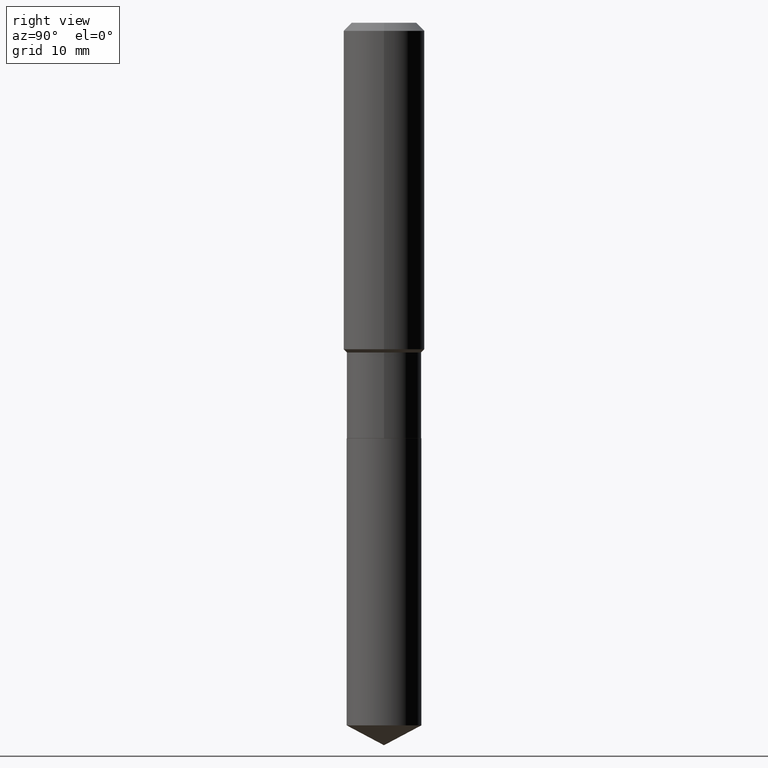
[diagram: clean part render]
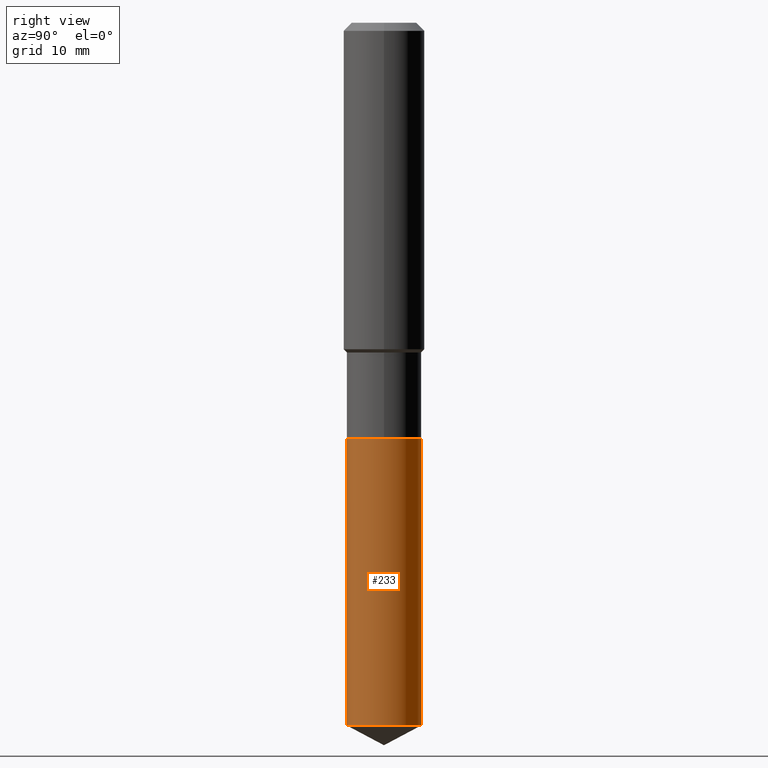
[diagram: same view with one face highlighted and labeled with its STEP entity id]
A machine part, right view. The second image highlights one B-rep face of the part: STEP entity #233.
In plain terms, the highlighted cylindrical surface (partial cylindrical patch) has radius 4.5999 mm, axis along (-0, 0, 1).
Its self-contained STEP definition (entity closure, byte-faithful):
#26 = DIRECTION ( 'NONE',  ( -6.982962677686266711E-15, -1.000000000000000000, 3.016949744521549444E-15 ) ) ;
#48 = ORIENTED_EDGE ( 'NONE', *, *, #390, .F. ) ;
#74 = AXIS2_PLACEMENT_3D ( 'NONE', #489, #156, #163 ) ;
#88 = CIRCLE ( 'NONE', #373, 0.1811000000000000110 ) ;
#99 = DIRECTION ( 'NONE',  ( -2.445569101703977201E-29, 3.491337709951699296E-15, 1.000000000000000000 ) ) ;
#102 = CARTESIAN_POINT ( 'NONE',  ( 4.929331472627379200E-29, -7.037778934706127955E-15, -2.015699999999999825 ) ) ;
#104 = CARTESIAN_POINT ( 'NONE',  ( 1.286792894461590621E-15, 0.1810999999999929888, -2.015700000000000269 ) ) ;
#156 = DIRECTION ( 'NONE',  ( -2.445569101703977201E-29, 3.491337709951699296E-15, 1.000000000000000000 ) ) ;
#163 = DIRECTION ( 'NONE',  ( -6.982962677686266711E-15, -1.000000000000000000, 3.016949744521549444E-15 ) ) ;
#164 = ORIENTED_EDGE ( 'NONE', *, *, #297, .T. ) ;
#180 = VERTEX_POINT ( 'NONE', #379 ) ;
#193 = CIRCLE ( 'NONE', #261, 0.1811000000000000110 ) ;
#195 = FACE_OUTER_BOUND ( 'NONE', #467, .T. ) ;
#198 = CARTESIAN_POINT ( 'NONE',  ( 8.333337256122308322E-29, -1.189739780563839754E-14, -3.407607421926106994 ) ) ;
#233 = ADVANCED_FACE ( 'NONE', ( #195 ), #344, .T. ) ;
#251 = LINE ( 'NONE', #104, #434 ) ;
#260 = DIRECTION ( 'NONE',  ( -2.445569101703977201E-29, 3.491337709951699296E-15, 1.000000000000000000 ) ) ;
#261 = AXIS2_PLACEMENT_3D ( 'NONE', #198, #347, #454 ) ;
#297 = EDGE_CURVE ( 'NONE', #357, #398, #193, .T. ) ;
#307 = VECTOR ( 'NONE', #439, 39.37007874015748143 ) ;
#325 = CARTESIAN_POINT ( 'NONE',  ( -1.264614540928933635E-15, -0.1811000000000070609, -2.015699999999999381 ) ) ;
#330 = CARTESIAN_POINT ( 'NONE',  ( 1.286792894461624739E-15, 0.1810999999999929888, -2.015700000000000269 ) ) ;
#344 = CYLINDRICAL_SURFACE ( 'NONE', #74, 0.1811000000000000110 ) ;
#347 = DIRECTION ( 'NONE',  ( -2.445569101703977201E-29, 3.491337709951699296E-15, 1.000000000000000000 ) ) ;
#357 = VERTEX_POINT ( 'NONE', #458 ) ;
#360 = CARTESIAN_POINT ( 'NONE',  ( 1.286792894461624542E-15, 0.1810999999999881316, -3.407607421926107438 ) ) ;
#368 = LINE ( 'NONE', #325, #307 ) ;
#373 = AXIS2_PLACEMENT_3D ( 'NONE', #102, #99, #26 ) ;
#376 = EDGE_CURVE ( 'NONE', #180, #389, #88, .T. ) ;
#379 = CARTESIAN_POINT ( 'NONE',  ( -1.264614540928933635E-15, -0.1811000000000070609, -2.015699999999999381 ) ) ;
#389 = VERTEX_POINT ( 'NONE', #330 ) ;
#390 = EDGE_CURVE ( 'NONE', #357, #180, #368, .T. ) ;
#398 = VERTEX_POINT ( 'NONE', #360 ) ;
#428 = ORIENTED_EDGE ( 'NONE', *, *, #436, .T. ) ;
#434 = VECTOR ( 'NONE', #260, 39.37007874015748143 ) ;
#436 = EDGE_CURVE ( 'NONE', #398, #389, #251, .T. ) ;
#439 = DIRECTION ( 'NONE',  ( -2.445569101703977201E-29, 3.491337709951699296E-15, 1.000000000000000000 ) ) ;
#454 = DIRECTION ( 'NONE',  ( -6.982962677686266711E-15, -1.000000000000000000, 3.016949744521549444E-15 ) ) ;
#458 = CARTESIAN_POINT ( 'NONE',  ( -1.264614540928899714E-15, -0.1811000000000118904, -3.407607421926106106 ) ) ;
#467 = EDGE_LOOP ( 'NONE', ( #164, #428, #479, #48 ) ) ;
#479 = ORIENTED_EDGE ( 'NONE', *, *, #376, .F. ) ;
#489 = CARTESIAN_POINT ( 'NONE',  ( 4.929331472627379200E-29, -7.037778934706127955E-15, -2.015699999999999825 ) ) ;